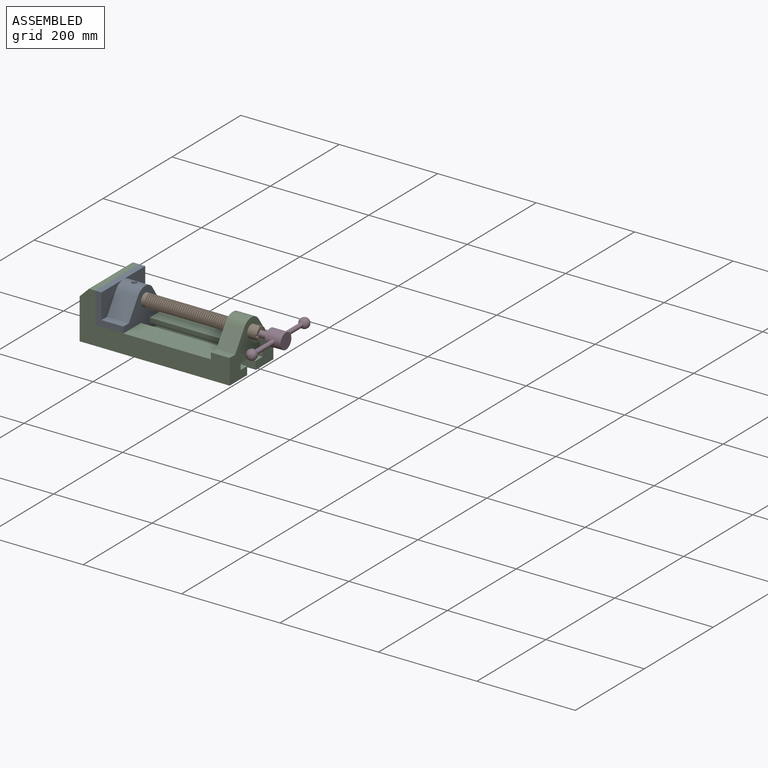
[diagram: assembled view]
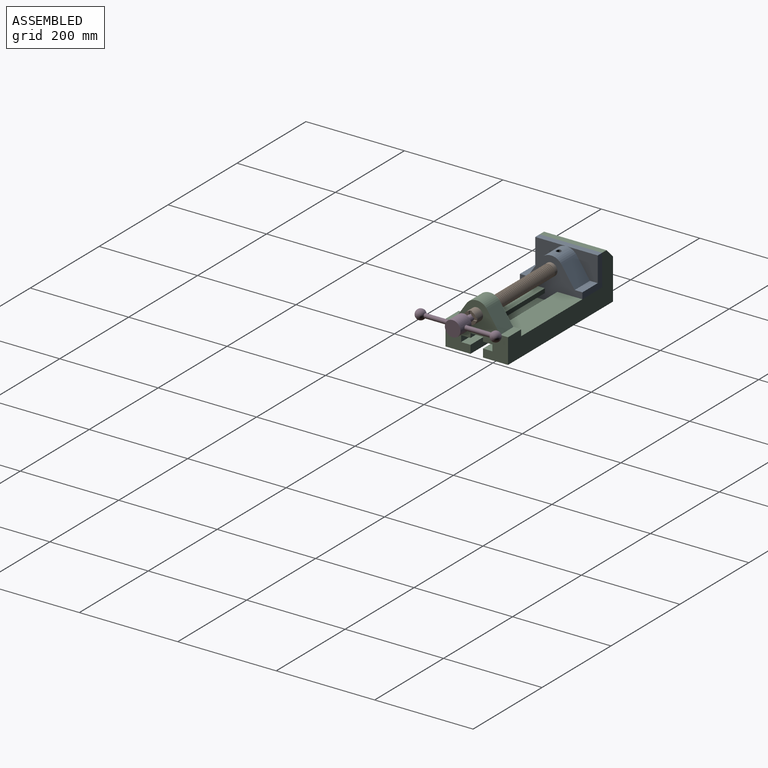
[diagram: assembled view, second angle]
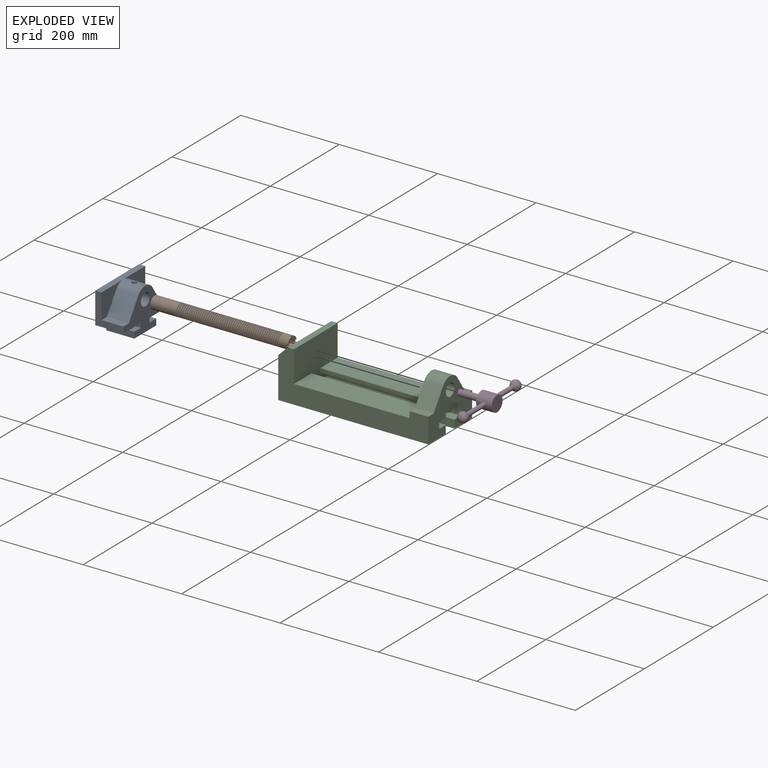
[diagram: exploded view]
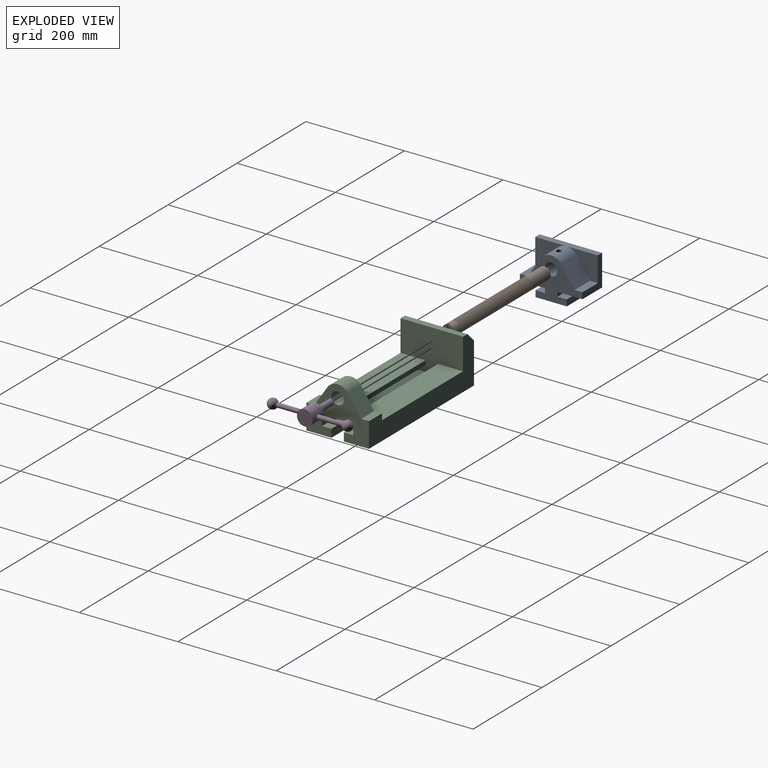
[diagram: exploded view, second angle]
ASSEMBLY  parts=4 mates=3
PART A: 24 faces, bbox 57.2x127x85.1 mm
  f0: plane 127x85.09mm, normal (-1,0,0), area 5190mm2, adj f1,f2,f3,f4,f5,f6,f7,f8
  f1: plane 57.15x19.05mm, normal (0,0,1), area 1088.7mm2, adj f0,f2,f12,f13
  f2: plane 57.15x12.7mm, normal (0,-1,0), area 725.8mm2, adj f0,f1,f3,f13
  f3: plane 63.5x57.15mm, normal (0,0,-1), area 3629mm2, adj f0,f2,f4,f13
  f4: plane 57.15x12.7mm, normal (0,1,0), area 725.8mm2, adj f0,f3,f5,f13
  f5: plane 57.15x19.05mm, normal (0,0,1), area 1088.7mm2, adj f0,f4,f6,f13
  f6: plane 57.15x8.89mm, normal (0,1,0), area 508.1mm2, adj f0,f5,f7,f13
  f7: plane 57.15x50.8mm, normal (0,0,-1), area 2903.2mm2, adj f0,f6,f8,f13
  f8: plane 63.5x57.15mm, normal (0,1,0), area 1371mm2, adj f0,f7,f9,f13,f18,f20
  f9: plane 127x12.7mm, normal (0,0,1), area 1612.9mm2, adj f8,f10,f13,f17,f20
  f10: plane 63.5x57.15mm, normal (0,-1,0), area 1371mm2, adj f0,f9,f11,f13,f14,f17
  f11: plane 57.15x50.8mm, normal (0,0,-1), area 2903.2mm2, adj f0,f10,f12,f13
  f12: plane 57.15x8.89mm, normal (0,-1,0), area 508.1mm2, adj f0,f1,f11,f13
  f13: plane 127x85.09mm, normal (1,0,0), area 9096.8mm2, adj f1,f2,f3,f4,f5,f6,f7,f8
  f14: plane 44.45x15.88mm, normal (0,0,1), area 705.6mm2, adj f0,f10,f16,f17
  f15: cylinder r=25.4mm len=44.45mm, axis (-1,0,0), area 2131.2mm2, adj f0,f16,f17,f19,f20,f23
  f16: plane 44.45x39.55mm, normal (0,-0.83,0.56), area 2116.9mm2, adj f0,f14,f15,f17
  f17: plane 63.5x50.8mm, normal (-1,0,0), area 1700mm2, adj f9,f10,f14,f15,f16
  f18: plane 44.45x15.88mm, normal (0,0,1), area 705.6mm2, adj f0,f8,f19,f20
  f19: plane 44.45x39.55mm, normal (0,0.83,0.56), area 2116.9mm2, adj f0,f15,f18,f20
  f20: plane 63.5x50.8mm, normal (-1,0,0), area 1700mm2, adj f8,f9,f15,f18,f19
  f21: cylinder r=12.7mm len=44.45mm, axis (-1,0,0), area 3464.1mm2, adj f0,f22,f23
  f22: plane 25.4x25.4mm, normal (-1,0,0), area 506.7mm2, adj f21
  f23: cylinder r=5.08mm len=13.76mm, axis (0,0,1), area 413.9mm2, adj f15,f21
PART B: 220 faces, bbox 279.4x25.4x25.4 mm
  f0: plane 9.9x9.9mm, normal (1,0,0), area 62.3mm2, adj f3,f4,f216,f217
  f1: plane 9.9x9.9mm, normal (1,0,0), area 62.3mm2, adj f3,f4,f210,f218
  f2: plane 9.9x9.9mm, normal (1,0,0), area 62.3mm2, adj f3,f4,f209,f213
  f3: cylinder r=12.7mm len=25.4mm, axis (-1,0,0), area 1468.2mm2, adj f0,f1,f2,f108,f109,f208,f209,f210
  f4: cylinder r=6.35mm len=25.4mm, axis (1,0,0), area 960.3mm2, adj f0,f1,f2,f108,f207,f208,f209,f210
  f5: cone r=12.7mm half-angle=76deg, axis (-1,0,0), area 188mm2, adj f6,f206
  f6: cylinder r=12.7mm len=25.4mm, axis (-1,0,0), area 131.7mm2, adj f5,f7
  f7: cone r=10.16mm half-angle=76deg, axis (1,0,0), area 188mm2, adj f6,f8
  f8: cylinder r=10.16mm len=20.32mm, axis (-1,0,0), area 81mm2, adj f7,f9
  f9: cone r=12.7mm half-angle=76deg, axis (-1,0,0), area 188mm2, adj f8,f10
  f10: cylinder r=12.7mm len=25.4mm, axis (-1,0,0), area 131.7mm2, adj f9,f11
  f11: cone r=10.16mm half-angle=76deg, axis (1,0,0), area 188mm2, adj f10,f12
  f12: cylinder r=10.16mm len=20.32mm, axis (-1,0,0), area 81mm2, adj f11,f13
  f13: cone r=12.7mm half-angle=76deg, axis (-1,0,0), area 188mm2, adj f12,f14
  f14: cylinder r=12.7mm len=25.4mm, axis (-1,0,0), area 131.7mm2, adj f13,f15
  f15: cone r=10.16mm half-angle=76deg, axis (1,0,0), area 188mm2, adj f14,f16
  f16: cylinder r=10.16mm len=20.32mm, axis (-1,0,0), area 81mm2, adj f15,f17
  f17: cone r=12.7mm half-angle=76deg, axis (-1,0,0), area 188mm2, adj f16,f18
  f18: cylinder r=12.7mm len=25.4mm, axis (-1,0,0), area 131.7mm2, adj f17,f19
  f19: cone r=10.16mm half-angle=76deg, axis (1,0,0), area 188mm2, adj f18,f20
  f20: cylinder r=10.16mm len=20.32mm, axis (-1,0,0), area 81mm2, adj f19,f21
  f21: cone r=12.7mm half-angle=76deg, axis (-1,0,0), area 188mm2, adj f20,f22
  f22: cylinder r=12.7mm len=25.4mm, axis (-1,0,0), area 131.7mm2, adj f21,f23
  f23: cone r=10.16mm half-angle=76deg, axis (1,0,0), area 188mm2, adj f22,f24
  f24: cylinder r=10.16mm len=20.32mm, axis (-1,0,0), area 81mm2, adj f23,f25
  f25: cone r=12.7mm half-angle=76deg, axis (-1,0,0), area 188mm2, adj f24,f26
  f26: cylinder r=12.7mm len=25.4mm, axis (-1,0,0), area 131.7mm2, adj f25,f27
  f27: cone r=10.16mm half-angle=76deg, axis (1,0,0), area 188mm2, adj f26,f28
  f28: cylinder r=10.16mm len=20.32mm, axis (-1,0,0), area 81mm2, adj f27,f29
  f29: cone r=12.7mm half-angle=76deg, axis (-1,0,0), area 188mm2, adj f28,f30
  f30: cylinder r=12.7mm len=25.4mm, axis (-1,0,0), area 131.7mm2, adj f29,f31
  f31: cone r=10.16mm half-angle=76deg, axis (1,0,0), area 188mm2, adj f30,f32
  f32: cylinder r=10.16mm len=20.32mm, axis (-1,0,0), area 81mm2, adj f31,f33
  f33: cone r=12.7mm half-angle=76deg, axis (-1,0,0), area 188mm2, adj f32,f34
  f34: cylinder r=12.7mm len=25.4mm, axis (-1,0,0), area 131.7mm2, adj f33,f35
  f35: cone r=10.16mm half-angle=76deg, axis (1,0,0), area 188mm2, adj f34,f36
  f36: cylinder r=10.16mm len=20.32mm, axis (-1,0,0), area 81mm2, adj f35,f37
  f37: cone r=12.7mm half-angle=76deg, axis (-1,0,0), area 188mm2, adj f36,f38
  f38: cylinder r=12.7mm len=25.4mm, axis (-1,0,0), area 131.7mm2, adj f37,f39
  f39: cone r=10.16mm half-angle=76deg, axis (1,0,0), area 188mm2, adj f38,f40
  f40: cylinder r=10.16mm len=20.32mm, axis (-1,0,0), area 81mm2, adj f39,f41
  f41: cone r=12.7mm half-angle=76deg, axis (-1,0,0), area 188mm2, adj f40,f42
  f42: cylinder r=12.7mm len=25.4mm, axis (-1,0,0), area 131.7mm2, adj f41,f43
  f43: cone r=10.16mm half-angle=76deg, axis (1,0,0), area 188mm2, adj f42,f44
  f44: cylinder r=10.16mm len=20.32mm, axis (-1,0,0), area 81mm2, adj f43,f45
  f45: cone r=12.7mm half-angle=76deg, axis (-1,0,0), area 188mm2, adj f44,f46
  f46: cylinder r=12.7mm len=25.4mm, axis (-1,0,0), area 131.7mm2, adj f45,f47
  f47: cone r=10.16mm half-angle=76deg, axis (1,0,0), area 188mm2, adj f46,f48
  f48: cylinder r=10.16mm len=20.32mm, axis (-1,0,0), area 81mm2, adj f47,f49
  f49: cone r=12.7mm half-angle=76deg, axis (-1,0,0), area 188mm2, adj f48,f50
  f50: cylinder r=12.7mm len=25.4mm, axis (-1,0,0), area 131.7mm2, adj f49,f51
  f51: cone r=10.16mm half-angle=76deg, axis (1,0,0), area 188mm2, adj f50,f52
  f52: cylinder r=10.16mm len=20.32mm, axis (-1,0,0), area 81mm2, adj f51,f53
  f53: cone r=12.7mm half-angle=76deg, axis (-1,0,0), area 188mm2, adj f52,f54
  f54: cylinder r=12.7mm len=25.4mm, axis (-1,0,0), area 131.7mm2, adj f53,f55
  f55: cone r=10.16mm half-angle=76deg, axis (1,0,0), area 188mm2, adj f54,f56
  f56: cylinder r=10.16mm len=20.32mm, axis (-1,0,0), area 81mm2, adj f55,f57
  f57: cone r=12.7mm half-angle=76deg, axis (-1,0,0), area 188mm2, adj f56,f58
  f58: cylinder r=12.7mm len=25.4mm, axis (-1,0,0), area 131.7mm2, adj f57,f59
  f59: cone r=10.16mm half-angle=76deg, axis (1,0,0), area 188mm2, adj f58,f60
  f60: cylinder r=10.16mm len=20.32mm, axis (-1,0,0), area 81mm2, adj f59,f61
  f61: cone r=12.7mm half-angle=76deg, axis (-1,0,0), area 188mm2, adj f60,f62
  f62: cylinder r=12.7mm len=25.4mm, axis (-1,0,0), area 131.7mm2, adj f61,f63
  f63: cone r=10.16mm half-angle=76deg, axis (1,0,0), area 188mm2, adj f62,f64
  f64: cylinder r=10.16mm len=20.32mm, axis (-1,0,0), area 81mm2, adj f63,f65
  f65: cone r=12.7mm half-angle=76deg, axis (-1,0,0), area 188mm2, adj f64,f66
  f66: cylinder r=12.7mm len=25.4mm, axis (-1,0,0), area 131.7mm2, adj f65,f67
  f67: cone r=10.16mm half-angle=76deg, axis (1,0,0), area 188mm2, adj f66,f68
  f68: cylinder r=10.16mm len=20.32mm, axis (-1,0,0), area 81mm2, adj f67,f69
  f69: cone r=12.7mm half-angle=76deg, axis (-1,0,0), area 188mm2, adj f68,f70
  f70: cylinder r=12.7mm len=25.4mm, axis (-1,0,0), area 131.7mm2, adj f69,f71
  f71: cone r=10.16mm half-angle=76deg, axis (1,0,0), area 188mm2, adj f70,f72
  f72: cylinder r=10.16mm len=20.32mm, axis (-1,0,0), area 81mm2, adj f71,f73
  f73: cone r=12.7mm half-angle=76deg, axis (-1,0,0), area 188mm2, adj f72,f74
  f74: cylinder r=12.7mm len=25.4mm, axis (-1,0,0), area 131.7mm2, adj f73,f75
  f75: cone r=10.16mm half-angle=76deg, axis (1,0,0), area 188mm2, adj f74,f76
  f76: cylinder r=10.16mm len=20.32mm, axis (-1,0,0), area 81mm2, adj f75,f77
  f77: cone r=12.7mm half-angle=76deg, axis (-1,0,0), area 188mm2, adj f76,f78
  f78: cylinder r=12.7mm len=25.4mm, axis (-1,0,0), area 131.7mm2, adj f77,f79
  f79: cone r=10.16mm half-angle=76deg, axis (1,0,0), area 188mm2, adj f78,f80
  f80: cylinder r=10.16mm len=20.32mm, axis (-1,0,0), area 81mm2, adj f79,f81
  f81: cone r=12.7mm half-angle=76deg, axis (-1,0,0), area 188mm2, adj f80,f82
  f82: cylinder r=12.7mm len=25.4mm, axis (-1,0,0), area 131.7mm2, adj f81,f83
  f83: cone r=10.16mm half-angle=76deg, axis (1,0,0), area 188mm2, adj f82,f84
  f84: cylinder r=10.16mm len=20.32mm, axis (-1,0,0), area 81mm2, adj f83,f85
  f85: cone r=12.7mm half-angle=76deg, axis (-1,0,0), area 188mm2, adj f84,f86
  f86: cylinder r=12.7mm len=25.4mm, axis (-1,0,0), area 131.7mm2, adj f85,f87
  f87: cone r=10.16mm half-angle=76deg, axis (1,0,0), area 188mm2, adj f86,f88
  f88: cylinder r=10.16mm len=20.32mm, axis (-1,0,0), area 81mm2, adj f87,f89
  f89: cone r=12.7mm half-angle=76deg, axis (-1,0,0), area 188mm2, adj f88,f90
  f90: cylinder r=12.7mm len=25.4mm, axis (-1,0,0), area 131.7mm2, adj f89,f91
  f91: cone r=10.16mm half-angle=76deg, axis (1,0,0), area 188mm2, adj f90,f92
  f92: cylinder r=10.16mm len=20.32mm, axis (-1,0,0), area 81mm2, adj f91,f93
  f93: cone r=12.7mm half-angle=76deg, axis (-1,0,0), area 188mm2, adj f92,f94
  f94: cylinder r=12.7mm len=25.4mm, axis (-1,0,0), area 131.7mm2, adj f93,f95
  f95: cone r=10.16mm half-angle=76deg, axis (1,0,0), area 188mm2, adj f94,f96
  f96: cylinder r=10.16mm len=20.32mm, axis (-1,0,0), area 81mm2, adj f95,f97
  f97: cone r=12.7mm half-angle=76deg, axis (-1,0,0), area 188mm2, adj f96,f98
  f98: cylinder r=12.7mm len=25.4mm, axis (-1,0,0), area 131.7mm2, adj f97,f99
  f99: cone r=10.16mm half-angle=76deg, axis (1,0,0), area 188mm2, adj f98,f100
  f100: cylinder r=10.16mm len=20.32mm, axis (-1,0,0), area 81mm2, adj f99,f101
  f101: cone r=12.7mm half-angle=76deg, axis (-1,0,0), area 188mm2, adj f100,f102
  f102: cylinder r=12.7mm len=25.4mm, axis (-1,0,0), area 131.7mm2, adj f101,f103
  f103: cone r=10.16mm half-angle=76deg, axis (1,0,0), area 188mm2, adj f102,f104
  f104: cylinder r=10.16mm len=20.32mm, axis (-1,0,0), area 81mm2, adj f103,f105
  f105: cone r=12.7mm half-angle=76deg, axis (-1,0,0), area 188mm2, adj f104,f106
  f106: cylinder r=12.7mm len=52.45mm, axis (-1,0,0), area 4185.4mm2, adj f105,f107
  f107: plane 25.4x25.4mm, normal (-1,0,0), area 506.7mm2, adj f106
  f108: plane 9.9x9.9mm, normal (1,0,0), area 62.3mm2, adj f3,f4,f212,f215
  f109: cone r=10.16mm half-angle=76deg, axis (1,0,0), area 188mm2, adj f3,f110
  f110: cylinder r=10.16mm len=20.32mm, axis (-1,0,0), area 81mm2, adj f109,f111
  f111: cone r=12.7mm half-angle=76deg, axis (-1,0,0), area 188mm2, adj f110,f112
  f112: cylinder r=12.7mm len=25.4mm, axis (-1,0,0), area 131.7mm2, adj f111,f113
  f113: cone r=10.16mm half-angle=76deg, axis (1,0,0), area 188mm2, adj f112,f114
  f114: cylinder r=10.16mm len=20.32mm, axis (-1,0,0), area 81mm2, adj f113,f115
  f115: cone r=12.7mm half-angle=76deg, axis (-1,0,0), area 188mm2, adj f114,f116
  f116: cylinder r=12.7mm len=25.4mm, axis (-1,0,0), area 131.7mm2, adj f115,f117
  f117: cone r=10.16mm half-angle=76deg, axis (1,0,0), area 188mm2, adj f116,f118
  f118: cylinder r=10.16mm len=20.32mm, axis (-1,0,0), area 81mm2, adj f117,f119
  f119: cone r=12.7mm half-angle=76deg, axis (-1,0,0), area 188mm2, adj f118,f120
  f120: cylinder r=12.7mm len=25.4mm, axis (-1,0,0), area 131.7mm2, adj f119,f121
  f121: cone r=10.16mm half-angle=76deg, axis (1,0,0), area 188mm2, adj f120,f122
  f122: cylinder r=10.16mm len=20.32mm, axis (-1,0,0), area 81mm2, adj f121,f123
  f123: cone r=12.7mm half-angle=76deg, axis (-1,0,0), area 188mm2, adj f122,f124
  f124: cylinder r=12.7mm len=25.4mm, axis (-1,0,0), area 131.7mm2, adj f123,f125
  f125: cone r=10.16mm half-angle=76deg, axis (1,0,0), area 188mm2, adj f124,f126
  f126: cylinder r=10.16mm len=20.32mm, axis (-1,0,0), area 81mm2, adj f125,f127
  f127: cone r=12.7mm half-angle=76deg, axis (-1,0,0), area 188mm2, adj f126,f128
  f128: cylinder r=12.7mm len=25.4mm, axis (-1,0,0), area 131.7mm2, adj f127,f129
  f129: cone r=10.16mm half-angle=76deg, axis (1,0,0), area 188mm2, adj f128,f130
  f130: cylinder r=10.16mm len=20.32mm, axis (-1,0,0), area 81mm2, adj f129,f131
  f131: cone r=12.7mm half-angle=76deg, axis (-1,0,0), area 188mm2, adj f130,f132
  f132: cylinder r=12.7mm len=25.4mm, axis (-1,0,0), area 131.7mm2, adj f131,f133
  f133: cone r=10.16mm half-angle=76deg, axis (1,0,0), area 188mm2, adj f132,f134
  f134: cylinder r=10.16mm len=20.32mm, axis (-1,0,0), area 81mm2, adj f133,f135
  f135: cone r=12.7mm half-angle=76deg, axis (-1,0,0), area 188mm2, adj f134,f136
  f136: cylinder r=12.7mm len=25.4mm, axis (-1,0,0), area 131.7mm2, adj f135,f137
  f137: cone r=10.16mm half-angle=76deg, axis (1,0,0), area 188mm2, adj f136,f138
  f138: cylinder r=10.16mm len=20.32mm, axis (-1,0,0), area 81mm2, adj f137,f139
  f139: cone r=12.7mm half-angle=76deg, axis (-1,0,0), area 188mm2, adj f138,f140
  f140: cylinder r=12.7mm len=25.4mm, axis (-1,0,0), area 131.7mm2, adj f139,f141
  f141: cone r=10.16mm half-angle=76deg, axis (1,0,0), area 188mm2, adj f140,f142
  f142: cylinder r=10.16mm len=20.32mm, axis (-1,0,0), area 81mm2, adj f141,f143
  f143: cone r=12.7mm half-angle=76deg, axis (-1,0,0), area 188mm2, adj f142,f144
  f144: cylinder r=12.7mm len=25.4mm, axis (-1,0,0), area 131.7mm2, adj f143,f145
  f145: cone r=10.16mm half-angle=76deg, axis (1,0,0), area 188mm2, adj f144,f146
  f146: cylinder r=10.16mm len=20.32mm, axis (-1,0,0), area 81mm2, adj f145,f147
  f147: cone r=12.7mm half-angle=76deg, axis (-1,0,0), area 188mm2, adj f146,f148
  f148: cylinder r=12.7mm len=25.4mm, axis (-1,0,0), area 131.7mm2, adj f147,f149
  f149: cone r=10.16mm half-angle=76deg, axis (1,0,0), area 188mm2, adj f148,f150
  f150: cylinder r=10.16mm len=20.32mm, axis (-1,0,0), area 81mm2, adj f149,f151
  f151: cone r=12.7mm half-angle=76deg, axis (-1,0,0), area 188mm2, adj f150,f152
  f152: cylinder r=12.7mm len=25.4mm, axis (-1,0,0), area 131.7mm2, adj f151,f153
  f153: cone r=10.16mm half-angle=76deg, axis (1,0,0), area 188mm2, adj f152,f154
  f154: cylinder r=10.16mm len=20.32mm, axis (-1,0,0), area 81mm2, adj f153,f155
  f155: cone r=12.7mm half-angle=76deg, axis (-1,0,0), area 188mm2, adj f154,f156
  f156: cylinder r=12.7mm len=25.4mm, axis (-1,0,0), area 131.7mm2, adj f155,f157
  f157: cone r=10.16mm half-angle=76deg, axis (1,0,0), area 188mm2, adj f156,f158
  f158: cylinder r=10.16mm len=20.32mm, axis (-1,0,0), area 81mm2, adj f157,f159
  f159: cone r=12.7mm half-angle=76deg, axis (-1,0,0), area 188mm2, adj f158,f160
  f160: cylinder r=12.7mm len=25.4mm, axis (-1,0,0), area 131.7mm2, adj f159,f161
  f161: cone r=10.16mm half-angle=76deg, axis (1,0,0), area 188mm2, adj f160,f162
  f162: cylinder r=10.16mm len=20.32mm, axis (-1,0,0), area 81mm2, adj f161,f163
  f163: cone r=12.7mm half-angle=76deg, axis (-1,0,0), area 188mm2, adj f162,f164
  f164: cylinder r=12.7mm len=25.4mm, axis (-1,0,0), area 131.7mm2, adj f163,f165
  f165: cone r=10.16mm half-angle=76deg, axis (1,0,0), area 188mm2, adj f164,f166
  f166: cylinder r=10.16mm len=20.32mm, axis (-1,0,0), area 81mm2, adj f165,f167
  f167: cone r=12.7mm half-angle=76deg, axis (-1,0,0), area 188mm2, adj f166,f168
  f168: cylinder r=12.7mm len=25.4mm, axis (-1,0,0), area 131.7mm2, adj f167,f169
  f169: cone r=10.16mm half-angle=76deg, axis (1,0,0), area 188mm2, adj f168,f170
  f170: cylinder r=10.16mm len=20.32mm, axis (-1,0,0), area 81mm2, adj f169,f171
  f171: cone r=12.7mm half-angle=76deg, axis (-1,0,0), area 188mm2, adj f170,f172
  f172: cylinder r=12.7mm len=25.4mm, axis (-1,0,0), area 131.7mm2, adj f171,f173
  f173: cone r=10.16mm half-angle=76deg, axis (1,0,0), area 188mm2, adj f172,f174
  f174: cylinder r=10.16mm len=20.32mm, axis (-1,0,0), area 81mm2, adj f173,f175
  f175: cone r=12.7mm half-angle=76deg, axis (-1,0,0), area 188mm2, adj f174,f176
  f176: cylinder r=12.7mm len=25.4mm, axis (-1,0,0), area 131.7mm2, adj f175,f177
  f177: cone r=10.16mm half-angle=76deg, axis (1,0,0), area 188mm2, adj f176,f178
  f178: cylinder r=10.16mm len=20.32mm, axis (-1,0,0), area 81mm2, adj f177,f179
  f179: cone r=12.7mm half-angle=76deg, axis (-1,0,0), area 188mm2, adj f178,f180
  f180: cylinder r=12.7mm len=25.4mm, axis (-1,0,0), area 131.7mm2, adj f179,f181
  f181: cone r=10.16mm half-angle=76deg, axis (1,0,0), area 188mm2, adj f180,f182
  f182: cylinder r=10.16mm len=20.32mm, axis (-1,0,0), area 81mm2, adj f181,f183
  f183: cone r=12.7mm half-angle=76deg, axis (-1,0,0), area 188mm2, adj f182,f184
  f184: cylinder r=12.7mm len=25.4mm, axis (-1,0,0), area 131.7mm2, adj f183,f185
  f185: cone r=10.16mm half-angle=76deg, axis (1,0,0), area 188mm2, adj f184,f186
  f186: cylinder r=10.16mm len=20.32mm, axis (-1,0,0), area 81mm2, adj f185,f187
  f187: cone r=12.7mm half-angle=76deg, axis (-1,0,0), area 188mm2, adj f186,f188
  f188: cylinder r=12.7mm len=25.4mm, axis (-1,0,0), area 131.7mm2, adj f187,f189
  f189: cone r=10.16mm half-angle=76deg, axis (1,0,0), area 188mm2, adj f188,f190
  f190: cylinder r=10.16mm len=20.32mm, axis (-1,0,0), area 81mm2, adj f189,f191
  f191: cone r=12.7mm half-angle=76deg, axis (-1,0,0), area 188mm2, adj f190,f192
  f192: cylinder r=12.7mm len=25.4mm, axis (-1,0,0), area 131.7mm2, adj f191,f193
  f193: cone r=10.16mm half-angle=76deg, axis (1,0,0), area 188mm2, adj f192,f194
  f194: cylinder r=10.16mm len=20.32mm, axis (-1,0,0), area 81mm2, adj f193,f195
  f195: cone r=12.7mm half-angle=76deg, axis (-1,0,0), area 188mm2, adj f194,f196
  f196: cylinder r=12.7mm len=25.4mm, axis (-1,0,0), area 131.7mm2, adj f195,f197
  f197: cone r=10.16mm half-angle=76deg, axis (1,0,0), area 188mm2, adj f196,f198
  f198: cylinder r=10.16mm len=20.32mm, axis (-1,0,0), area 81mm2, adj f197,f199
  f199: cone r=12.7mm half-angle=76deg, axis (-1,0,0), area 188mm2, adj f198,f200
  f200: cylinder r=12.7mm len=25.4mm, axis (-1,0,0), area 131.7mm2, adj f199,f201
  f201: cone r=10.16mm half-angle=76deg, axis (1,0,0), area 188mm2, adj f200,f202
  f202: cylinder r=10.16mm len=20.32mm, axis (-1,0,0), area 81mm2, adj f201,f203
  f203: cone r=12.7mm half-angle=76deg, axis (-1,0,0), area 188mm2, adj f202,f204
  f204: cylinder r=12.7mm len=25.4mm, axis (-1,0,0), area 131.7mm2, adj f203,f205
  f205: cone r=10.16mm half-angle=76deg, axis (1,0,0), area 188mm2, adj f204,f206
  f206: cylinder r=10.16mm len=20.32mm, axis (-1,0,0), area 81mm2, adj f5,f205
  f207: plane 12.7x12.7mm, normal (1,0,0), area 126.7mm2, adj f4
  f208: plane 6.88x5.08mm, normal (1,0,0), area 32.7mm2, adj f3,f4,f209,f210
  f209: plane 6.62x2.54mm, normal (0,-1,0), area 16.8mm2, adj f2,f3,f4,f208
  f210: plane 6.62x2.54mm, normal (0,1,0), area 16.8mm2, adj f1,f3,f4,f208
  f211: plane 6.88x5.08mm, normal (1,0,0), area 32.7mm2, adj f3,f4,f212,f213
  f212: plane 6.62x2.54mm, normal (0,0,-1), area 16.8mm2, adj f3,f4,f108,f211
  f213: plane 6.62x2.54mm, normal (0,0,1), area 16.8mm2, adj f2,f3,f4,f211
  f214: plane 6.88x5.08mm, normal (1,0,0), area 32.7mm2, adj f3,f4,f215,f216
  f215: plane 6.62x2.54mm, normal (0,-1,0), area 16.8mm2, adj f3,f4,f108,f214
  f216: plane 6.62x2.54mm, normal (0,1,0), area 16.8mm2, adj f0,f3,f4,f214
  f217: plane 6.62x2.54mm, normal (0,0,-1), area 16.8mm2, adj f0,f3,f4,f219
  f218: plane 6.62x2.54mm, normal (0,0,1), area 16.8mm2, adj f1,f3,f4,f219
  f219: plane 6.88x5.08mm, normal (1,0,0), area 32.7mm2, adj f3,f4,f217,f218
PART C: 28 faces, bbox 304.8x127x101.6 mm
  f0: plane 234.95x50.8mm, normal (0,0,1), area 11935.5mm2, adj f1,f4,f8,f22
  f1: plane 127x63.5mm, normal (-1,0,0), area 4157.7mm2, adj f0,f3,f8,f9,f11,f12,f13,f14
  f2: plane 127x12.7mm, normal (0,0,1), area 1612.9mm2, adj f4,f8,f9,f10
  f3: plane 234.95x50.8mm, normal (0,0,1), area 11935.5mm2, adj f1,f4,f9,f21
  f4: plane 127x101.6mm, normal (1,0,0), area 9516.1mm2, adj f0,f2,f3,f6,f8,f9,f17,f18
  f5: plane 127x82.55mm, normal (-1,0,0), area 10483.8mm2, adj f6,f8,f9,f10
  f6: plane 304.8x127mm, normal (0,0,-1), area 31774.1mm2, adj f4,f5,f7,f8,f9,f17,f26
  f7: plane 127x101.6mm, normal (1,0,0), area 7544.8mm2, adj f6,f8,f9,f11,f12,f13,f14,f15
  f8: plane 304.8x101.6mm, normal (0,-1,0), area 13931.4mm2, adj f0,f1,f2,f4,f5,f6,f7,f10
  f9: plane 304.8x101.6mm, normal (0,1,0), area 13931.4mm2, adj f1,f2,f3,f4,f5,f6,f7,f10
  f10: plane 127x19.05mm, normal (-0.71,0,0.71), area 3421.5mm2, adj f2,f5,f8,f9
  f11: plane 39.55x38.1mm, normal (0,0.83,0.56), area 1814.5mm2, adj f1,f7,f12,f13
  f12: cylinder r=25.4mm len=42.19mm, axis (1,0,0), area 1896.6mm2, adj f1,f7,f11,f14
  f13: plane 38.1x15.88mm, normal (0,0,1), area 604.8mm2, adj f1,f7,f9,f11
  f14: plane 39.55x38.1mm, normal (0,-0.83,0.56), area 1814.5mm2, adj f1,f7,f12,f15
  f15: plane 38.1x15.88mm, normal (0,0,1), area 604.8mm2, adj f1,f7,f8,f14
  f16: plane 38.1x25.4mm, normal (0,0,-1), area 967.7mm2, adj f1,f7,f21,f22
  f17: plane 273.05x16.51mm, normal (0,-1,0), area 4508.1mm2, adj f4,f6,f7,f18
  f18: plane 273.05x19.05mm, normal (0,0,1), area 5201.6mm2, adj f4,f7,f17,f19
  f19: plane 273.05x12.7mm, normal (0,-1,0), area 3467.7mm2, adj f4,f7,f18,f20
  f20: plane 273.05x19.05mm, normal (0,0,-1), area 5201.6mm2, adj f4,f7,f19,f21
  f21: plane 273.05x8.89mm, normal (0,-1,0), area 2427.4mm2, adj f3,f4,f7,f16,f20
  f22: plane 273.05x8.89mm, normal (0,1,0), area 2427.4mm2, adj f0,f4,f7,f16,f23
  f23: plane 273.05x19.05mm, normal (0,0,-1), area 5201.6mm2, adj f4,f7,f22,f24
  f24: plane 273.05x12.7mm, normal (0,1,0), area 3467.7mm2, adj f4,f7,f23,f25
  f25: plane 273.05x19.05mm, normal (0,0,1), area 5201.6mm2, adj f4,f7,f24,f26
  f26: plane 273.05x16.51mm, normal (0,1,0), area 4508.1mm2, adj f4,f6,f7,f25
  f27: cylinder r=12.7mm len=38.1mm, axis (1,0,0), area 3040.2mm2, adj f1,f7
PART D: 9 faces, bbox 31.8x172.7x76.2 mm
  f0: cylinder r=15.88mm len=31.75mm, axis (0,0,-1), area 3041.5mm2, adj f1,f4,f5,f6
  f1: plane 31.75x31.75mm, normal (0,0,-1), area 665.1mm2, adj f0,f2
  f2: cylinder r=6.35mm len=44.45mm, axis (0,0,-1), area 1773.5mm2, adj f1,f3
  f3: plane 12.7x12.7mm, normal (0,0,-1), area 126.7mm2, adj f2
  f4: plane 31.75x31.75mm, normal (0,0,1), area 791.7mm2, adj f0
  f5: cylinder r=4.45mm len=51.82mm, axis (0,1,0), area 1438.5mm2, adj f0,f7
  f6: cylinder r=4.45mm len=51.82mm, axis (0,1,0), area 1438.5mm2, adj f0,f8
  f7: sphere r=10.16mm, area 1231.8mm2, adj f5
  f8: sphere r=10.16mm, area 1231.8mm2, adj f6
PLACE A rot(axis=(0,0,1),180deg) t=(-12.63,-30.43,58.8)mm
PLACE B t=(-57.08,-30.43,118.49)mm
PLACE C t=(-101.53,-30.43,42.29)mm fixed
PLACE D rot(axis=(0,1,0),90deg) t=(196.92,-30.43,118.49)mm
MATE fastened B.f3 <-> D.f0  axis (1,0,0) through (196.92,-30.43,118.49)mm
MATE fastened A.f15 <-> B.f3  axis (1,0,0) through (-57.08,-30.43,118.49)mm
MATE slider A.f13 <-> C.f4  axis (-1,0,0) through (-69.78,-30.43,143.89)mm
